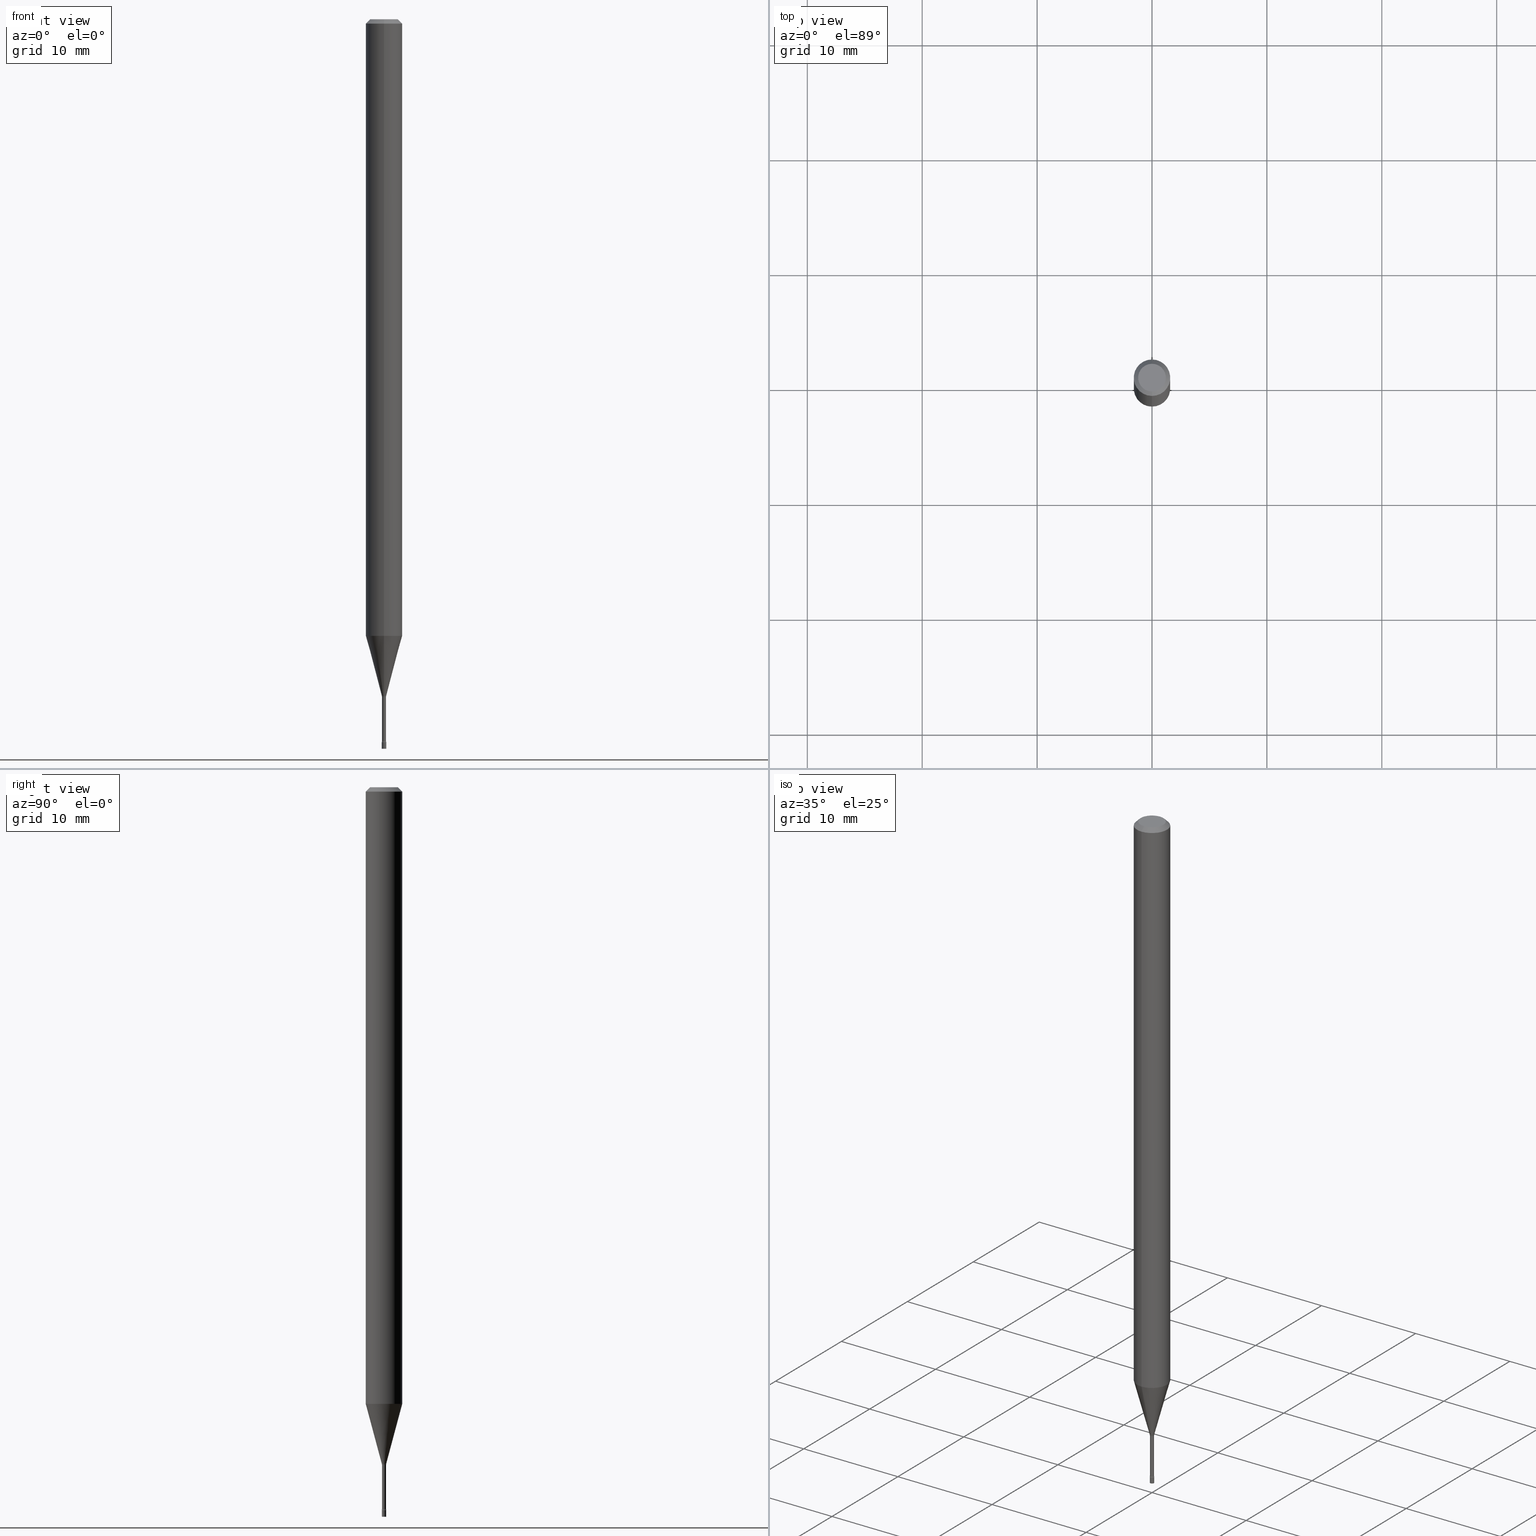
[diagram: canonical four-view strip — front | top / right | iso, engineering-drawing reading convention]
A machine part, canonical four-view strip (front | top / right | iso — engineering-drawing reading convention). The complete STEP part file that produces these views, byte-faithful:
ISO-10303-21;
HEADER;
FILE_DESCRIPTION (( 'STEP AP203' ),
    '1' );
FILE_NAME ('03590.STEP',
    '2024-03-08T21:58:53',
    ( '' ),
    ( '' ),
    'SwSTEP 2.0',
    'SolidWorks 2023',
    '' );
FILE_SCHEMA (( 'CONFIG_CONTROL_DESIGN' ));
ENDSEC;

DATA;
#1 = FACE_OUTER_BOUND ( 'NONE', #109, .T. ) ;
#2 = DIRECTION ( 'NONE',  ( -2.445513339146382515E-29, 3.491417565107982719E-15, 1.000000000000000000 ) ) ;
#3 = CC_DESIGN_PERSON_AND_ORGANIZATION_ASSIGNMENT ( #468, #110, ( #134 ) ) ;
#4 = DATE_TIME_ROLE ( 'classification_date' ) ;
#5 = AXIS2_PLACEMENT_3D ( 'NONE', #488, #125, #243 ) ;
#6 = EDGE_CURVE ( 'NONE', #297, #343, #64, .T. ) ;
#7 = DIRECTION ( 'NONE',  ( -2.445468806185136597E-29, 3.491481338843145583E-15, 1.000000000000000000 ) ) ;
#8 = CIRCLE ( 'NONE', #509, 0.007050000000000001578 ) ;
#9 = ADVANCED_FACE ( 'NONE', ( #293 ), #339, .T. ) ;
#10 = PLANE ( 'NONE',  #501 ) ;
#11 = CARTESIAN_POINT ( 'NONE',  ( 5.678420315904336435E-29, -8.106983558689025189E-15, -2.321974787463811030 ) ) ;
#12 = ADVANCED_FACE ( 'NONE', ( #385 ), #253, .F. ) ;
#13 = DIRECTION ( 'NONE',  ( -6.982962677686265922E-15, -1.000000000000000000, 3.491417565107982719E-15 ) ) ;
#14 = LINE ( 'NONE', #215, #48 ) ;
#15 = CIRCLE ( 'NONE', #467, 0.007049999999999998976 ) ;
#16 = EDGE_LOOP ( 'NONE', ( #315, #212, #431, #70 ) ) ;
#17 = CARTESIAN_POINT ( 'NONE',  ( -5.279896712707803457E-17, -0.007561112605672072433, -2.318092501787273108 ) ) ;
#18 = CARTESIAN_POINT ( 'NONE',  ( 5.009326287114755776E-17, 0.007049999999991890878, -2.321974787463811030 ) ) ;
#19 = CARTESIAN_POINT ( 'NONE',  ( 0.007499999999999999722, -8.700771496397117730E-15, -2.476999999999999869 ) ) ;
#20 = LINE ( 'NONE', #53, #396 ) ;
#21 = ORIENTED_EDGE ( 'NONE', *, *, #270, .F. ) ;
#22 = EDGE_CURVE ( 'NONE', #474, #68, #14, .T. ) ;
#23 = EDGE_CURVE ( 'NONE', #384, #388, #41, .T. ) ;
#24 = VECTOR ( 'NONE', #174, 39.37007874015748854 ) ;
#25 = ORIENTED_EDGE ( 'NONE', *, *, #316, .T. ) ;
#26 = AXIS2_PLACEMENT_3D ( 'NONE', #11, #213, #169 ) ;
#27 = ORIENTED_EDGE ( 'NONE', *, *, #370, .T. ) ;
#28 = DIRECTION ( 'NONE',  ( -1.807323732225327378E-15, -0.2588190451025177974, 0.9659258262890690894 ) ) ;
#29 = VERTEX_POINT ( 'NONE', #18 ) ;
#30 = DIRECTION ( 'NONE',  ( -6.982962677686265922E-15, -1.000000000000000000, 3.491417565107982719E-15 ) ) ;
#31 = CC_DESIGN_DATE_AND_TIME_ASSIGNMENT ( #356, #4, ( #307 ) ) ;
#32 =( CONVERSION_BASED_UNIT ( 'INCH', #347 ) LENGTH_UNIT ( ) NAMED_UNIT ( #285 ) );
#33 = DIRECTION ( 'NONE',  ( 2.445513339146382515E-29, -3.491417565107982719E-15, -1.000000000000000000 ) ) ;
#34 = EDGE_LOOP ( 'NONE', ( #386, #497 ) ) ;
#35 = CIRCLE ( 'NONE', #95, 0.01500000000000002373 ) ;
#36 = AXIS2_PLACEMENT_3D ( 'NONE', #209, #452, #91 ) ;
#37 = ORIENTED_EDGE ( 'NONE', *, *, #40, .F. ) ;
#38 = APPROVAL_STATUS ( 'not_yet_approved' ) ;
#39 = DIRECTION ( 'NONE',  ( -6.982962677686265133E-15, -1.000000000000000000, 0.000000000000000000 ) ) ;
#40 = EDGE_CURVE ( 'NONE', #398, #126, #122, .T. ) ;
#41 = CIRCLE ( 'NONE', #346, 0.06250000000000000000 ) ;
#42 = LOCAL_TIME ( 16, 58, 53.00000000000000000, #406 ) ;
#43 = FACE_OUTER_BOUND ( 'NONE', #186, .T. ) ;
#44 = ORIENTED_EDGE ( 'NONE', *, *, #298, .F. ) ;
#45 = CARTESIAN_POINT ( 'NONE',  ( -0.007499999999999999722, -8.635260606529160038E-15, -2.476999999999999869 ) ) ;
#46 = DIRECTION ( 'NONE',  ( -2.445513339146382515E-29, 3.491417565107982719E-15, 1.000000000000000000 ) ) ;
#47 = VERTEX_POINT ( 'NONE', #389 ) ;
#48 = VECTOR ( 'NONE', #28, 39.37007874015748143 ) ;
#49 = DIRECTION ( 'NONE',  ( -6.982962677686265922E-15, -1.000000000000000000, 3.491417565107982719E-15 ) ) ;
#50 = EDGE_CURVE ( 'NONE', #429, #274, #401, .T. ) ;
#51 = VECTOR ( 'NONE', #128, 39.37007874015748143 ) ;
#52 = CARTESIAN_POINT ( 'NONE',  ( -0.007499999999999999722, -8.635260606529160038E-15, -2.500000000000000000 ) ) ;
#53 = CARTESIAN_POINT ( 'NONE',  ( -0.007499999999999999722, 5.329070518200751197E-17, -3.689201317691179266E-31 ) ) ;
#54 = ORIENTED_EDGE ( 'NONE', *, *, #22, .F. ) ;
#55 = EDGE_CURVE ( 'NONE', #126, #398, #237, .T. ) ;
#56 = DIRECTION ( 'NONE',  ( 2.445513339146382515E-29, -3.491417565107982719E-15, -1.000000000000000000 ) ) ;
#57 = AXIS2_PLACEMENT_3D ( 'NONE', #418, #62, #462 ) ;
#58 = DIRECTION ( 'NONE',  ( -2.445513339146382515E-29, 3.491417565107982719E-15, 1.000000000000000000 ) ) ;
#59 = AXIS2_PLACEMENT_3D ( 'NONE', #141, #453, #375 ) ;
#60 = FACE_OUTER_BOUND ( 'NONE', #420, .T. ) ;
#61 = CARTESIAN_POINT ( 'NONE',  ( 5.678316911491112973E-29, -8.107131639694176138E-15, -2.321974787463811030 ) ) ;
#62 = DIRECTION ( 'NONE',  ( -2.445513339146381954E-29, 3.491417565107983114E-15, 1.000000000000000000 ) ) ;
#63 = ORIENTED_EDGE ( 'NONE', *, *, #238, .T. ) ;
#64 = LINE ( 'NONE', #301, #24 ) ;
#65 = TOROIDAL_SURFACE ( 'NONE', #276, 0.02205000000000002444, 0.01500000000000002373 ) ;
#66 = PERSON_AND_ORGANIZATION_ROLE ( 'creator' ) ;
#67 = ADVANCED_FACE ( 'NONE', ( #267 ), #111, .T. ) ;
#68 = VERTEX_POINT ( 'NONE', #505 ) ;
#69 = DIRECTION ( 'NONE',  ( 7.105427357601001859E-15, 1.000000000000000000, 0.000000000000000000 ) ) ;
#70 = ORIENTED_EDGE ( 'NONE', *, *, #475, .F. ) ;
#71 = SECURITY_CLASSIFICATION_LEVEL ( 'unclassified' ) ;
#72 = CARTESIAN_POINT ( 'NONE',  ( 6.113672015462842613E-29, -8.728703347107864943E-15, -2.500000000000000000 ) ) ;
#73 = ORIENTED_EDGE ( 'NONE', *, *, #6, .F. ) ;
#74 = APPROVAL_ROLE ( '' ) ;
#75 = VERTEX_POINT ( 'NONE', #234 ) ;
#76 = CIRCLE ( 'NONE', #476, 0.06250000000000000000 ) ;
#77 = LOCAL_TIME ( 16, 58, 53.00000000000000000, #514 ) ;
#78 =( NAMED_UNIT ( * ) SI_UNIT ( $, .STERADIAN. ) SOLID_ANGLE_UNIT ( ) );
#79 = DIRECTION ( 'NONE',  ( -6.982962677686265133E-15, -1.000000000000000000, 0.000000000000000000 ) ) ;
#80 = EDGE_LOOP ( 'NONE', ( #520, #405 ) ) ;
#81 = ORIENTED_EDGE ( 'NONE', *, *, #202, .F. ) ;
#82 = PLANE ( 'NONE',  #5 ) ;
#83 = EDGE_LOOP ( 'NONE', ( #516, #456, #268, #303 ) ) ;
#84 = CARTESIAN_POINT ( 'NONE',  ( 6.057426232920582713E-29, -8.648399276314471045E-15, -2.476999999999999869 ) ) ;
#85 = MANIFOLD_SOLID_BREP ( 'Body-Move/Copy2[2]', #193 ) ;
#86 = VECTOR ( 'NONE', #166, 39.37007874015748143 ) ;
#87 = DIRECTION ( 'NONE',  ( 2.445513339146381954E-29, -3.491417565107983114E-15, -1.000000000000000000 ) ) ;
#88 = CARTESIAN_POINT ( 'NONE',  ( -1.539743270429253881E-16, -0.02205000000000810478, -2.321974787463811030 ) ) ;
#89 = CARTESIAN_POINT ( 'NONE',  ( 2.489070731061789820E-16, 0.007561112605655887463, -2.318092501787273108 ) ) ;
#90 = DIRECTION ( 'NONE',  ( -2.445513339146382515E-29, 3.491417565107982719E-15, 1.000000000000000000 ) ) ;
#91 = DIRECTION ( 'NONE',  ( -6.982962677686265133E-15, -1.000000000000000000, 0.000000000000000000 ) ) ;
#92 = CARTESIAN_POINT ( 'NONE',  ( 5.237222008270812965E-17, 0.007499999999991270594, -2.500000000000000000 ) ) ;
#93 = ORIENTED_EDGE ( 'NONE', *, *, #290, .T. ) ;
#94 = DIRECTION ( 'NONE',  ( -4.851104656540964275E-15, -0.7071067811865500152, -0.7071067811865450192 ) ) ;
#95 = AXIS2_PLACEMENT_3D ( 'NONE', #224, #392, #39 ) ;
#96 = EDGE_CURVE ( 'NONE', #297, #29, #484, .T. ) ;
#97 = DIRECTION ( 'NONE',  ( 1.000000000000000000, -6.982962677686267499E-15, 4.876176775795936353E-29 ) ) ;
#98 = AXIS2_PLACEMENT_3D ( 'NONE', #88, #317, #192 ) ;
#99 = DIRECTION ( 'NONE',  ( -2.445513339146382515E-29, 3.491417565107982719E-15, 1.000000000000000000 ) ) ;
#100 = ORIENTED_EDGE ( 'NONE', *, *, #167, .F. ) ;
#101 = DIRECTION ( 'NONE',  ( -6.982962677686265922E-15, -1.000000000000000000, 0.000000000000000000 ) ) ;
#102 = DATE_AND_TIME ( #217, #77 ) ;
#103 = AXIS2_PLACEMENT_3D ( 'NONE', #133, #331, #101 ) ;
#104 = PERSON_AND_ORGANIZATION ( #233, #348 ) ;
#105 = FACE_OUTER_BOUND ( 'NONE', #222, .T. ) ;
#106 = ORIENTED_EDGE ( 'NONE', *, *, #404, .T. ) ;
#107 = FACE_OUTER_BOUND ( 'NONE', #441, .T. ) ;
#108 = EDGE_CURVE ( 'NONE', #381, #464, #35, .T. ) ;
#109 = EDGE_LOOP ( 'NONE', ( #180, #341, #259, #271 ) ) ;
#110 = PERSON_AND_ORGANIZATION_ROLE ( 'creator' ) ;
#111 = CYLINDRICAL_SURFACE ( 'NONE', #255, 0.06250000000000000000 ) ;
#112 = ORIENTED_EDGE ( 'NONE', *, *, #435, .T. ) ;
#113 = AXIS2_PLACEMENT_3D ( 'NONE', #312, #33, #508 ) ;
#114 = ADVANCED_FACE ( 'NONE', ( #345 ), #324, .F. ) ;
#115 = AXIS2_PLACEMENT_3D ( 'NONE', #197, #90, #326 ) ;
#116 = ORIENTED_EDGE ( 'NONE', *, *, #400, .T. ) ;
#117 = MECHANICAL_CONTEXT ( 'NONE', #241, 'mechanical' ) ;
#118 = CARTESIAN_POINT ( 'NONE',  ( -4.922988687768817558E-17, -0.007050000000000000711, 2.461449383401128192E-17 ) ) ;
#119 = DIRECTION ( 'NONE',  ( -2.445513339146382515E-29, 3.491417565107982719E-15, 1.000000000000000000 ) ) ;
#120 = CC_DESIGN_PERSON_AND_ORGANIZATION_ASSIGNMENT ( #269, #430, ( #307 ) ) ;
#121 = DIRECTION ( 'NONE',  ( 1.000000000000000000, -6.982962677686267499E-15, 4.876176775795936353E-29 ) ) ;
#122 = CIRCLE ( 'NONE', #424, 0.007499999999999999722 ) ;
#123 = AXIS2_PLACEMENT_3D ( 'NONE', #92, #252, #205 ) ;
#124 = CC_DESIGN_APPROVAL ( #499, ( #307 ) ) ;
#125 = DIRECTION ( 'NONE',  ( -2.438088387897960049E-29, 3.491481338843145188E-15, 1.000000000000000000 ) ) ;
#126 = VERTEX_POINT ( 'NONE', #515 ) ;
#127 = DIRECTION ( 'NONE',  ( -6.982962677686265133E-15, -1.000000000000000000, 3.491417565107982719E-15 ) ) ;
#128 = DIRECTION ( 'NONE',  ( 4.937700262164548042E-15, 0.7071067811865451302, -0.7071067811865499042 ) ) ;
#129 = EDGE_CURVE ( 'NONE', #474, #297, #216, .T. ) ;
#130 = CIRCLE ( 'NONE', #200, 0.007499999999999999722 ) ;
#131 = LOCAL_TIME ( 16, 58, 53.00000000000000000, #473 ) ;
#132 = FACE_OUTER_BOUND ( 'NONE', #188, .T. ) ;
#133 = CARTESIAN_POINT ( 'NONE',  ( 6.057536541065588652E-29, -8.648241308772473316E-15, -2.476999999999999869 ) ) ;
#134 = PRODUCT_DEFINITION ( 'UNKNOWN', '', #403, #360 ) ;
#135 = DIRECTION ( 'NONE',  ( -6.982962677686265922E-15, -1.000000000000000000, 0.000000000000000000 ) ) ;
#136 = ADVANCED_FACE ( 'NONE', ( #107 ), #500, .T. ) ;
#137 = DIRECTION ( 'NONE',  ( -6.982962677686265922E-15, -1.000000000000000000, 3.491417565107982719E-15 ) ) ;
#138 = CC_DESIGN_APPROVAL ( #494, ( #403 ) ) ;
#139 = EDGE_CURVE ( 'NONE', #381, #47, #148, .T. ) ;
#140 = PRODUCT_DEFINITION_SHAPE ( 'NONE', 'NONE',  #134 ) ;
#141 = CARTESIAN_POINT ( 'NONE',  ( 0.000000000000000000, 0.000000000000000000, 0.000000000000000000 ) ) ;
#142 = ORIENTED_EDGE ( 'NONE', *, *, #55, .F. ) ;
#143 = COORDINATED_UNIVERSAL_TIME_OFFSET ( 5, 0, .BEHIND. ) ;
#144 = ORIENTED_EDGE ( 'NONE', *, *, #334, .F. ) ;
#145 = DIRECTION ( 'NONE',  ( 1.000000000000000000, -6.982962677686268288E-15, 0.000000000000000000 ) ) ;
#146 = ORIENTED_EDGE ( 'NONE', *, *, #480, .T. ) ;
#147 = APPROVAL_STATUS ( 'not_yet_approved' ) ;
#148 = LINE ( 'NONE', #118, #229 ) ;
#149 = AXIS2_PLACEMENT_3D ( 'NONE', #498, #227, #504 ) ;
#150 = ORIENTED_EDGE ( 'NONE', *, *, #50, .F. ) ;
#151 = DIRECTION ( 'NONE',  ( 0.000000000000000000, 0.000000000000000000, 1.000000000000000000 ) ) ;
#152 = EDGE_LOOP ( 'NONE', ( #461, #466, #182, #81 ) ) ;
#153 = FACE_OUTER_BOUND ( 'NONE', #196, .T. ) ;
#154 = EDGE_LOOP ( 'NONE', ( #220, #445, #305, #21 ) ) ;
#155 =( LENGTH_UNIT ( ) NAMED_UNIT ( * ) SI_UNIT ( $, .METRE. ) );
#156 = DIRECTION ( 'NONE',  ( -2.445513339146382515E-29, 3.491417565107982719E-15, 1.000000000000000000 ) ) ;
#157 = ADVANCED_FACE ( 'NONE', ( #153 ), #177, .F. ) ;
#158 = CARTESIAN_POINT ( 'NONE',  ( -3.773273898774340269E-16, -0.04749999999999999362, 1.369253941623399415E-16 ) ) ;
#159 = ADVANCED_FACE ( 'NONE', ( #434 ), #82, .T. ) ;
#160 = ORIENTED_EDGE ( 'NONE', *, *, #322, .F. ) ;
#161 = CARTESIAN_POINT ( 'NONE',  ( 5.329070518206812484E-17, 0.007499999999991359932, -2.476999999999999869 ) ) ;
#162 = CARTESIAN_POINT ( 'NONE',  ( 0.007499999999999999722, -5.237222008264700526E-17, 3.657132581846952195E-31 ) ) ;
#163 = CIRCLE ( 'NONE', #486, 0.06250000000000000000 ) ;
#164 = APPROVAL_PERSON_ORGANIZATION ( #363, #499, #246 ) ;
#165 = DIRECTION ( 'NONE',  ( -2.445513339146382515E-29, 3.491417565107982719E-15, 1.000000000000000000 ) ) ;
#166 = DIRECTION ( 'NONE',  ( -2.445468806185136877E-29, 3.491481338843145188E-15, 1.000000000000000000 ) ) ;
#167 = EDGE_CURVE ( 'NONE', #343, #68, #76, .T. ) ;
#168 = EDGE_LOOP ( 'NONE', ( #463, #254, #368, #116 ) ) ;
#169 = DIRECTION ( 'NONE',  ( -6.982962677686265922E-15, -1.000000000000000000, 0.000000000000000000 ) ) ;
#170 = AXIS2_PLACEMENT_3D ( 'NONE', #477, #151, #506 ) ;
#171 = CARTESIAN_POINT ( 'NONE',  ( 4.440892098501145824E-16, 0.06249999999999995143, -0.01500000000000024751 ) ) ;
#172 = ADVANCED_FACE ( 'NONE', ( #43 ), #442, .T. ) ;
#173 = LINE ( 'NONE', #333, #295 ) ;
#174 = DIRECTION ( 'NONE',  ( 1.839019923739597160E-15, 0.2588190451025245142, 0.9659258262890670910 ) ) ;
#175 = CYLINDRICAL_SURFACE ( 'NONE', #59, 0.007050000000000000711 ) ;
#176 = LINE ( 'NONE', #491, #314 ) ;
#177 = TOROIDAL_SURFACE ( 'NONE', #457, 0.02205000000000000016, 0.01500000000000002547 ) ;
#178 = AXIS2_PLACEMENT_3D ( 'NONE', #61, #99, #13 ) ;
#179 = CALENDAR_DATE ( 2024, 8, 3 ) ;
#180 = ORIENTED_EDGE ( 'NONE', *, *, #480, .F. ) ;
#181 = PERSON_AND_ORGANIZATION_ROLE ( 'design_supplier' ) ;
#182 = ORIENTED_EDGE ( 'NONE', *, *, #23, .F. ) ;
#183 = DIRECTION ( 'NONE',  ( -2.445513339146382234E-29, 3.491417565107983114E-15, 1.000000000000000000 ) ) ;
#184 = AXIS2_PLACEMENT_3D ( 'NONE', #310, #397, #513 ) ;
#185 = AXIS2_PLACEMENT_3D ( 'NONE', #251, #56, #413 ) ;
#186 = EDGE_LOOP ( 'NONE', ( #416, #393, #150, #144 ) ) ;
#187 = APPROVAL ( #147, 'UNSPECIFIED' ) ;
#188 = EDGE_LOOP ( 'NONE', ( #391, #27, #352, #302 ) ) ;
#189 = DIRECTION ( 'NONE',  ( -2.445513339146382515E-29, 3.491417565107982719E-15, 1.000000000000000000 ) ) ;
#190 = CARTESIAN_POINT ( 'NONE',  ( 1.566746732351588408E-16, 0.02204999999999189206, -2.321974787463811030 ) ) ;
#191 = CALENDAR_DATE ( 2024, 8, 3 ) ;
#192 = DIRECTION ( 'NONE',  ( -6.982962677686266711E-15, -1.000000000000000000, 0.000000000000000000 ) ) ;
#193 = CLOSED_SHELL ( 'NONE', ( #377, #472, #355, #136, #260, #490, #511, #67, #439, #320, #12, #114, #263, #157 ) ) ;
#194 = LOCAL_TIME ( 16, 58, 53.00000000000000000, #143 ) ;
#195 = FACE_OUTER_BOUND ( 'NONE', #152, .T. ) ;
#196 = EDGE_LOOP ( 'NONE', ( #226, #512, #93, #349 ) ) ;
#197 = CARTESIAN_POINT ( 'NONE',  ( 5.668926134495985985E-29, -8.093428878285194336E-15, -2.318092501787273108 ) ) ;
#198 = CARTESIAN_POINT ( 'NONE',  ( 7.071676293819534531E-46, -1.009611128746386763E-31, -2.891694018028924753E-17 ) ) ;
#199 = AXIS2_PLACEMENT_3D ( 'NONE', #221, #399, #30 ) ;
#200 = AXIS2_PLACEMENT_3D ( 'NONE', #84, #7, #358 ) ;
#201 = APPROVAL_DATE_TIME ( #321, #499 ) ;
#202 = EDGE_CURVE ( 'NONE', #68, #384, #362, .T. ) ;
#203 = LINE ( 'NONE', #482, #51 ) ;
#204 = DIRECTION ( 'NONE',  ( -2.445513339146382234E-29, 3.491417565107983114E-15, 1.000000000000000000 ) ) ;
#205 = DIRECTION ( 'NONE',  ( -1.000000000000000000, 6.982962677686265922E-15, -4.876176775795935793E-29 ) ) ;
#206 = CC_DESIGN_PERSON_AND_ORGANIZATION_ASSIGNMENT ( #387, #181, ( #403 ) ) ;
#207 = EDGE_CURVE ( 'NONE', #343, #388, #284, .T. ) ;
#208 = CC_DESIGN_APPROVAL ( #187, ( #134 ) ) ;
#209 = CARTESIAN_POINT ( 'NONE',  ( 6.048618796356072015E-29, -8.635509597183926559E-15, -2.473353426265656907 ) ) ;
#210 = ORIENTED_EDGE ( 'NONE', *, *, #129, .T. ) ;
#211 = FACE_OUTER_BOUND ( 'NONE', #83, .T. ) ;
#212 = ORIENTED_EDGE ( 'NONE', *, *, #167, .T. ) ;
#213 = DIRECTION ( 'NONE',  ( -2.445513339146382515E-29, 3.491417565107982719E-15, 1.000000000000000000 ) ) ;
#214 = EDGE_LOOP ( 'NONE', ( #160, #448, #235, #422 ) ) ;
#215 = CARTESIAN_POINT ( 'NONE',  ( -5.279896712707803457E-17, -0.007561112605672072433, -2.318092501787273108 ) ) ;
#216 = CIRCLE ( 'NONE', #394, 0.007561112605663979948 ) ;
#217 = CALENDAR_DATE ( 2024, 8, 3 ) ;
#218 = ORIENTED_EDGE ( 'NONE', *, *, #322, .T. ) ;
#219 = PERSON_AND_ORGANIZATION ( #233, #348 ) ;
#220 = ORIENTED_EDGE ( 'NONE', *, *, #428, .F. ) ;
#221 = CARTESIAN_POINT ( 'NONE',  ( 6.048508650603792991E-29, -8.635667332170297409E-15, -2.473353426265656907 ) ) ;
#222 = EDGE_LOOP ( 'NONE', ( #73, #218, #469, #100 ) ) ;
#223 = COORDINATED_UNIVERSAL_TIME_OFFSET ( 5, 0, .BEHIND. ) ;
#224 = CARTESIAN_POINT ( 'NONE',  ( -1.539743270429218629E-16, -0.02205000000000865990, -2.473353426265656907 ) ) ;
#225 = CC_DESIGN_PERSON_AND_ORGANIZATION_ASSIGNMENT ( #219, #390, ( #244 ) ) ;
#226 = ORIENTED_EDGE ( 'NONE', *, *, #96, .F. ) ;
#227 = DIRECTION ( 'NONE',  ( -2.445513339146382515E-29, 3.491417565107982719E-15, 1.000000000000000000 ) ) ;
#228 = CARTESIAN_POINT ( 'NONE',  ( 5.678316911491112973E-29, -8.107131639694176138E-15, -2.321974787463811030 ) ) ;
#229 = VECTOR ( 'NONE', #183, 39.37007874015748143 ) ;
#230 = CIRCLE ( 'NONE', #283, 0.01500000000000002373 ) ;
#231 = DATE_AND_TIME ( #353, #194 ) ;
#232 = DIRECTION ( 'NONE',  ( -2.445468806185136597E-29, 3.491481338843145583E-15, 1.000000000000000000 ) ) ;
#233 = PERSON ( 'UNSPECIFIED', 'UNSPECIFIED', 'UNSPECIFIED', ('UNSPECIFIED'), ('UNSPECIFIED'), ('UNSPECIFIED') ) ;
#234 = CARTESIAN_POINT ( 'NONE',  ( 3.840629472727447874E-16, 0.04749999999999999362, -1.947592745229183872E-16 ) ) ;
#235 = ORIENTED_EDGE ( 'NONE', *, *, #378, .T. ) ;
#236 = DIRECTION ( 'NONE',  ( -2.445513339146382234E-29, 3.491417565107983114E-15, 1.000000000000000000 ) ) ;
#237 = CIRCLE ( 'NONE', #264, 0.007499999999999999722 ) ;
#238 = EDGE_CURVE ( 'NONE', #75, #280, #313, .T. ) ;
#239 = AXIS2_PLACEMENT_3D ( 'NONE', #417, #496, #135 ) ;
#240 = VERTEX_POINT ( 'NONE', #161 ) ;
#241 = APPLICATION_CONTEXT ( 'configuration controlled 3d designs of mechanical parts and assemblies' ) ;
#242 = DIRECTION ( 'NONE',  ( 6.982962677686265922E-15, 1.000000000000000000, -3.491417565107983114E-15 ) ) ;
#243 = DIRECTION ( 'NONE',  ( 1.000000000000000000, -6.982962677686265922E-15, 4.876176775795935793E-29 ) ) ;
#244 = PRODUCT ( '03590', '03590', '', ( #117 ) ) ;
#245 = CC_DESIGN_DATE_AND_TIME_ASSIGNMENT ( #231, #510, ( #134 ) ) ;
#246 = APPROVAL_ROLE ( '' ) ;
#247 = DIRECTION ( 'NONE',  ( -6.982962677686266711E-15, -1.000000000000000000, 3.491417565107982719E-15 ) ) ;
#248 = VECTOR ( 'NONE', #236, 39.37007874015748143 ) ;
#249 = CIRCLE ( 'NONE', #98, 0.01500000000000002373 ) ;
#250 = DIRECTION ( 'NONE',  ( -2.445513339146382515E-29, 3.491417565107982719E-15, 1.000000000000000000 ) ) ;
#251 = CARTESIAN_POINT ( 'NONE',  ( 3.668270008719580866E-31, -5.237126347661984802E-17, -0.01500000000000003067 ) ) ;
#252 = DIRECTION ( 'NONE',  ( 2.438088387897960049E-29, -3.491481338843145188E-15, -1.000000000000000000 ) ) ;
#253 = PLANE ( 'NONE',  #57 ) ;
#254 = ORIENTED_EDGE ( 'NONE', *, *, #404, .F. ) ;
#255 = AXIS2_PLACEMENT_3D ( 'NONE', #273, #189, #351 ) ;
#256 = CIRCLE ( 'NONE', #115, 0.007561112605663979948 ) ;
#257 = CARTESIAN_POINT ( 'NONE',  ( -4.364351673553912750E-16, -0.06250000000000005551, -0.01499999999999981209 ) ) ;
#258 = DIRECTION ( 'NONE',  ( 1.000000000000000000, -7.105427357601001070E-15, 4.926314727539076266E-29 ) ) ;
#259 = ORIENTED_EDGE ( 'NONE', *, *, #139, .T. ) ;
#260 = ADVANCED_FACE ( 'NONE', ( #195 ), #409, .T. ) ;
#261 = DIRECTION ( 'NONE',  ( -6.982962677686265922E-15, -1.000000000000000000, 3.483106191921935554E-15 ) ) ;
#262 = ORIENTED_EDGE ( 'NONE', *, *, #415, .F. ) ;
#263 = ADVANCED_FACE ( 'NONE', ( #1 ), #519, .T. ) ;
#264 = AXIS2_PLACEMENT_3D ( 'NONE', #342, #479, #145 ) ;
#265 = APPROVAL_DATE_TIME ( #102, #494 ) ;
#266 = CIRCLE ( 'NONE', #36, 0.007050000000000001578 ) ;
#267 = FACE_OUTER_BOUND ( 'NONE', #16, .T. ) ;
#268 = ORIENTED_EDGE ( 'NONE', *, *, #298, .T. ) ;
#269 = PERSON_AND_ORGANIZATION ( #233, #348 ) ;
#270 = EDGE_CURVE ( 'NONE', #274, #429, #130, .T. ) ;
#271 = ORIENTED_EDGE ( 'NONE', *, *, #378, .F. ) ;
#272 = APPLICATION_PROTOCOL_DEFINITION ( 'international standard', 'config_control_design', 1994, #455 ) ;
#273 = CARTESIAN_POINT ( 'NONE',  ( 0.000000000000000000, 0.000000000000000000, 0.000000000000000000 ) ) ;
#274 = VERTEX_POINT ( 'NONE', #45 ) ;
#275 = DIRECTION ( 'NONE',  ( 1.000000000000000000, -7.105427357601001070E-15, 4.926314727539076266E-29 ) ) ;
#276 = AXIS2_PLACEMENT_3D ( 'NONE', #294, #296, #137 ) ;
#277 = VERTEX_POINT ( 'NONE', #408 ) ;
#278 = DIRECTION ( 'NONE',  ( -2.445513339146382515E-29, 3.491417565107982719E-15, 1.000000000000000000 ) ) ;
#279 = CARTESIAN_POINT ( 'NONE',  ( 3.316907271900976096E-16, 0.04749999999999999362, -1.803008044327738005E-16 ) ) ;
#280 = VERTEX_POINT ( 'NONE', #158 ) ;
#281 = CARTESIAN_POINT ( 'NONE',  ( 0.000000000000000000, 0.000000000000000000, 0.000000000000000000 ) ) ;
#282 = CLOSED_SHELL ( 'NONE', ( #172, #159, #9, #449 ) ) ;
#283 = AXIS2_PLACEMENT_3D ( 'NONE', #460, #258, #379 ) ;
#284 = LINE ( 'NONE', #407, #492 ) ;
#285 = DIMENSIONAL_EXPONENTS ( 1.000000000000000000, 0.000000000000000000, 0.000000000000000000, 0.000000000000000000, 0.000000000000000000, 0.000000000000000000, 0.000000000000000000 ) ;
#286 = LINE ( 'NONE', #162, #86 ) ;
#287 = CARTESIAN_POINT ( 'NONE',  ( 5.167510994029587230E-29, -7.377567058677804661E-15, -2.113057782720306310 ) ) ;
#288 = AXIS2_PLACEMENT_3D ( 'NONE', #361, #165, #247 ) ;
#289 = APPROVAL_PERSON_ORGANIZATION ( #350, #187, #421 ) ;
#290 = EDGE_CURVE ( 'NONE', #474, #47, #249, .T. ) ;
#291 = DIRECTION ( 'NONE',  ( -2.445513339146382515E-29, 3.491417565107982719E-15, 1.000000000000000000 ) ) ;
#292 = CARTESIAN_POINT ( 'NONE',  ( -5.237222008258649716E-17, -0.007500000000008657727, -2.476999999999999869 ) ) ;
#293 = FACE_OUTER_BOUND ( 'NONE', #154, .T. ) ;
#294 = CARTESIAN_POINT ( 'NONE',  ( 6.048508650603792991E-29, -8.635667332170297409E-15, -2.473353426265656907 ) ) ;
#295 = VECTOR ( 'NONE', #204, 39.37007874015748143 ) ;
#296 = DIRECTION ( 'NONE',  ( -2.445513339146382515E-29, 3.491417565107982719E-15, 1.000000000000000000 ) ) ;
#297 = VERTEX_POINT ( 'NONE', #89 ) ;
#298 = EDGE_CURVE ( 'NONE', #75, #388, #203, .T. ) ;
#299 = DIRECTION ( 'NONE',  ( -2.445513339146382515E-29, 3.491417565107982719E-15, 1.000000000000000000 ) ) ;
#300 = ORIENTED_EDGE ( 'NONE', *, *, #330, .F. ) ;
#301 = CARTESIAN_POINT ( 'NONE',  ( 5.372493636224331373E-17, 0.007561112605655886595, -2.318092501787273108 ) ) ;
#302 = ORIENTED_EDGE ( 'NONE', *, *, #108, .F. ) ;
#303 = ORIENTED_EDGE ( 'NONE', *, *, #475, .T. ) ;
#304 = CC_DESIGN_PERSON_AND_ORGANIZATION_ASSIGNMENT ( #426, #66, ( #403 ) ) ;
#305 = ORIENTED_EDGE ( 'NONE', *, *, #334, .T. ) ;
#306 = CIRCLE ( 'NONE', #103, 0.007499999999999999722 ) ;
#307 = SECURITY_CLASSIFICATION ( '', '', #71 ) ;
#308 = UNCERTAINTY_MEASURE_WITH_UNIT (LENGTH_MEASURE( 1.000000000000000082E-05 ), #32, 'distance_accuracy_value', 'NONE');
#309 = DIRECTION ( 'NONE',  ( -6.982962677686265133E-15, -1.000000000000000000, 0.000000000000000000 ) ) ;
#310 = CARTESIAN_POINT ( 'NONE',  ( 6.057426232920582713E-29, -8.648399276314471045E-15, -2.476999999999999869 ) ) ;
#311 = ORIENTED_EDGE ( 'NONE', *, *, #316, .F. ) ;
#312 = CARTESIAN_POINT ( 'NONE',  ( 3.668270008719580866E-31, -5.237126347661984802E-17, -0.01500000000000003067 ) ) ;
#313 = CIRCLE ( 'NONE', #288, 0.04749999999999999362 ) ;
#314 = VECTOR ( 'NONE', #94, 39.37007874015748143 ) ;
#315 = ORIENTED_EDGE ( 'NONE', *, *, #207, .F. ) ;
#316 = EDGE_CURVE ( 'NONE', #280, #75, #337, .T. ) ;
#317 = DIRECTION ( 'NONE',  ( -1.000000000000000000, 6.982962677686265922E-15, -4.883557194083112340E-29 ) ) ;
#318 = ORIENTED_EDGE ( 'NONE', *, *, #23, .T. ) ;
#319 = DIRECTION ( 'NONE',  ( -2.445513339146382515E-29, 3.491417565107982719E-15, 1.000000000000000000 ) ) ;
#320 = ADVANCED_FACE ( 'NONE', ( #369 ), #10, .F. ) ;
#321 = DATE_AND_TIME ( #446, #42 ) ;
#322 = EDGE_CURVE ( 'NONE', #297, #474, #256, .T. ) ;
#323 = DIRECTION ( 'NONE',  ( -2.445513339146382234E-29, 3.491417565107983114E-15, 1.000000000000000000 ) ) ;
#324 = TOROIDAL_SURFACE ( 'NONE', #199, 0.02205000000000002444, 0.01500000000000002373 ) ;
#325 = APPROVAL_STATUS ( 'not_yet_approved' ) ;
#326 = DIRECTION ( 'NONE',  ( -6.982962677686265133E-15, -1.000000000000000000, 0.000000000000000000 ) ) ;
#327 = DIRECTION ( 'NONE',  ( -2.445513339146382515E-29, 3.491417565107982719E-15, 1.000000000000000000 ) ) ;
#328 = FACE_OUTER_BOUND ( 'NONE', #354, .T. ) ;
#329 = CONICAL_SURFACE ( 'NONE', #149, 0.007561112605663979948, 0.2617993877991498519 ) ;
#330 = EDGE_CURVE ( 'NONE', #68, #343, #425, .T. ) ;
#331 = DIRECTION ( 'NONE',  ( -2.445513339146382515E-29, 3.491417565107982719E-15, 1.000000000000000000 ) ) ;
#332 = CARTESIAN_POINT ( 'NONE',  ( 3.668270008719580866E-31, -5.237126347661984802E-17, -0.01500000000000003067 ) ) ;
#333 = CARTESIAN_POINT ( 'NONE',  ( 5.009326287108705583E-17, 0.007050000000000000711, -2.461449383401128192E-17 ) ) ;
#334 = EDGE_CURVE ( 'NONE', #126, #429, #286, .T. ) ;
#335 = CARTESIAN_POINT ( 'NONE',  ( 3.668270008719580866E-31, -5.237126347661984802E-17, -0.01500000000000003067 ) ) ;
#336 = EDGE_CURVE ( 'NONE', #277, #381, #8, .T. ) ;
#337 = CIRCLE ( 'NONE', #517, 0.04749999999999999362 ) ;
#338 = FACE_OUTER_BOUND ( 'NONE', #372, .T. ) ;
#339 = CYLINDRICAL_SURFACE ( 'NONE', #382, 0.007499999999999999722 ) ;
#340 =( NAMED_UNIT ( * ) PLANE_ANGLE_UNIT ( ) SI_UNIT ( $, .RADIAN. ) );
#341 = ORIENTED_EDGE ( 'NONE', *, *, #336, .T. ) ;
#342 = CARTESIAN_POINT ( 'NONE',  ( 6.113672015462842613E-29, -8.728703347107864943E-15, -2.500000000000000000 ) ) ;
#343 = VERTEX_POINT ( 'NONE', #371 ) ;
#344 = APPLICATION_PROTOCOL_DEFINITION ( 'international standard', 'config_control_design', 1994, #241 ) ;
#345 = FACE_OUTER_BOUND ( 'NONE', #168, .T. ) ;
#346 = AXIS2_PLACEMENT_3D ( 'NONE', #332, #58, #376 ) ;
#347 = LENGTH_MEASURE_WITH_UNIT ( LENGTH_MEASURE( 0.02539999999999999897 ), #155 );
#348 = ORGANIZATION ( 'UNSPECIFIED', 'UNSPECIFIED', '' ) ;
#349 = ORIENTED_EDGE ( 'NONE', *, *, #415, .T. ) ;
#350 = PERSON_AND_ORGANIZATION ( #233, #348 ) ;
#351 = DIRECTION ( 'NONE',  ( -6.982962677686265922E-15, -1.000000000000000000, 3.491417565107982719E-15 ) ) ;
#352 = ORIENTED_EDGE ( 'NONE', *, *, #483, .T. ) ;
#353 = CALENDAR_DATE ( 2024, 8, 3 ) ;
#354 = EDGE_LOOP ( 'NONE', ( #106, #146, #262, #487 ) ) ;
#355 = ADVANCED_FACE ( 'NONE', ( #132 ), #65, .F. ) ;
#356 = DATE_AND_TIME ( #191, #502 ) ;
#357 = AXIS2_PLACEMENT_3D ( 'NONE', #364, #2, #49 ) ;
#358 = DIRECTION ( 'NONE',  ( 1.000000000000000000, -6.982962677686268288E-15, 0.000000000000000000 ) ) ;
#359 = TOROIDAL_SURFACE ( 'NONE', #178, 0.02205000000000000016, 0.01500000000000002547 ) ;
#360 = DESIGN_CONTEXT ( 'detailed design', #455, 'design' ) ;
#361 = CARTESIAN_POINT ( 'NONE',  ( 7.071676293819534531E-46, -1.009611128746386763E-31, -2.891694018028924753E-17 ) ) ;
#362 = LINE ( 'NONE', #402, #248 ) ;
#363 = PERSON_AND_ORGANIZATION ( #233, #348 ) ;
#364 = CARTESIAN_POINT ( 'NONE',  ( 0.000000000000000000, 0.000000000000000000, 0.000000000000000000 ) ) ;
#365 = AXIS2_PLACEMENT_3D ( 'NONE', #281, #489, #121 ) ;
#366 = CONICAL_SURFACE ( 'NONE', #185, 0.06250000000000000000, 0.7853981633974483900 ) ;
#367 = PRODUCT_RELATED_PRODUCT_CATEGORY ( 'detail', '', ( #244 ) ) ;
#368 = ORIENTED_EDGE ( 'NONE', *, *, #108, .T. ) ;
#369 = FACE_OUTER_BOUND ( 'NONE', #507, .T. ) ;
#370 = EDGE_CURVE ( 'NONE', #277, #240, #230, .T. ) ;
#371 = CARTESIAN_POINT ( 'NONE',  ( 4.440892098501140893E-16, 0.06249999999999262396, -2.113057782720306310 ) ) ;
#372 = EDGE_LOOP ( 'NONE', ( #142, #37 ) ) ;
#373 = PLANE ( 'NONE',  #123 ) ;
#374 = DIRECTION ( 'NONE',  ( -2.445468806185136597E-29, 3.491481338843145583E-15, 1.000000000000000000 ) ) ;
#375 = DIRECTION ( 'NONE',  ( -6.982962677686265133E-15, -1.000000000000000000, 3.491417565107982719E-15 ) ) ;
#376 = DIRECTION ( 'NONE',  ( -6.982962677686265922E-15, -1.000000000000000000, 3.483106191921935554E-15 ) ) ;
#377 = ADVANCED_FACE ( 'NONE', ( #419 ), #359, .F. ) ;
#378 = EDGE_CURVE ( 'NONE', #29, #47, #478, .T. ) ;
#379 = DIRECTION ( 'NONE',  ( 7.105427357601001859E-15, 1.000000000000000000, 0.000000000000000000 ) ) ;
#380 = CARTESIAN_POINT ( 'NONE',  ( 5.678420315904336435E-29, -8.106983558689025189E-15, -2.321974787463811030 ) ) ;
#381 = VERTEX_POINT ( 'NONE', #414 ) ;
#382 = AXIS2_PLACEMENT_3D ( 'NONE', #454, #374, #97 ) ;
#383 = CIRCLE ( 'NONE', #239, 0.007499999999999999722 ) ;
#384 = VERTEX_POINT ( 'NONE', #257 ) ;
#385 = FACE_OUTER_BOUND ( 'NONE', #34, .T. ) ;
#386 = ORIENTED_EDGE ( 'NONE', *, *, #400, .F. ) ;
#387 = PERSON_AND_ORGANIZATION ( #233, #348 ) ;
#388 = VERTEX_POINT ( 'NONE', #171 ) ;
#389 = CARTESIAN_POINT ( 'NONE',  ( -4.922988687763138375E-17, -0.007050000000008106206, -2.321974787463811030 ) ) ;
#390 = PERSON_AND_ORGANIZATION_ROLE ( 'design_owner' ) ;
#391 = ORIENTED_EDGE ( 'NONE', *, *, #336, .F. ) ;
#392 = DIRECTION ( 'NONE',  ( -1.000000000000000000, 6.982962677686265922E-15, -4.883557194083112340E-29 ) ) ;
#393 = ORIENTED_EDGE ( 'NONE', *, *, #428, .T. ) ;
#394 = AXIS2_PLACEMENT_3D ( 'NONE', #471, #156, #79 ) ;
#395 = DIRECTION ( 'NONE',  ( -2.445513339146382515E-29, 3.491417565107982719E-15, 1.000000000000000000 ) ) ;
#396 = VECTOR ( 'NONE', #495, 39.37007874015748143 ) ;
#397 = DIRECTION ( 'NONE',  ( -2.445468806185136597E-29, 3.491481338843145583E-15, 1.000000000000000000 ) ) ;
#398 = VERTEX_POINT ( 'NONE', #52 ) ;
#399 = DIRECTION ( 'NONE',  ( -2.445513339146382515E-29, 3.491417565107982719E-15, 1.000000000000000000 ) ) ;
#400 = EDGE_CURVE ( 'NONE', #464, #240, #306, .T. ) ;
#401 = CIRCLE ( 'NONE', #184, 0.007499999999999999722 ) ;
#402 = CARTESIAN_POINT ( 'NONE',  ( -4.364351673553916201E-16, -0.06250000000000000000, 2.182135978192489199E-16 ) ) ;
#403 = PRODUCT_DEFINITION_FORMATION_WITH_SPECIFIED_SOURCE ( 'ANY', '', #244, .NOT_KNOWN. ) ;
#404 = EDGE_CURVE ( 'NONE', #381, #277, #266, .T. ) ;
#405 = ORIENTED_EDGE ( 'NONE', *, *, #270, .T. ) ;
#406 = COORDINATED_UNIVERSAL_TIME_OFFSET ( 5, 0, .BEHIND. ) ;
#407 = CARTESIAN_POINT ( 'NONE',  ( 4.440892098500625669E-16, 0.06250000000000000000, -2.182135978192489199E-16 ) ) ;
#408 = CARTESIAN_POINT ( 'NONE',  ( 5.169198402660787828E-17, 0.007049999999991366124, -2.473353426265656907 ) ) ;
#409 = CYLINDRICAL_SURFACE ( 'NONE', #357, 0.06250000000000000000 ) ;
#410 = AXIS2_PLACEMENT_3D ( 'NONE', #190, #275, #69 ) ;
#411 = AXIS2_PLACEMENT_3D ( 'NONE', #287, #46, #440 ) ;
#412 = DIRECTION ( 'NONE',  ( -6.982962677686265133E-15, -1.000000000000000000, 0.000000000000000000 ) ) ;
#413 = DIRECTION ( 'NONE',  ( 6.982962677686265922E-15, 1.000000000000000000, -3.483106191921935554E-15 ) ) ;
#414 = CARTESIAN_POINT ( 'NONE',  ( -4.922988687762769829E-17, -0.007050000000008637031, -2.473353426265656907 ) ) ;
#415 = EDGE_CURVE ( 'NONE', #47, #29, #15, .T. ) ;
#416 = ORIENTED_EDGE ( 'NONE', *, *, #55, .T. ) ;
#417 = CARTESIAN_POINT ( 'NONE',  ( 6.057536541065588652E-29, -8.648241308772473316E-15, -2.476999999999999869 ) ) ;
#418 = CARTESIAN_POINT ( 'NONE',  ( 5.237222008270756882E-17, 0.007499999999991352126, -2.476999999999999869 ) ) ;
#419 = FACE_OUTER_BOUND ( 'NONE', #214, .T. ) ;
#420 = EDGE_LOOP ( 'NONE', ( #210, #438, #300, #54 ) ) ;
#421 = APPROVAL_ROLE ( '' ) ;
#422 = ORIENTED_EDGE ( 'NONE', *, *, #290, .F. ) ;
#423 = ADVANCED_BREP_SHAPE_REPRESENTATION ( '03590', ( #432, #85, #170 ), #436 ) ;
#424 = AXIS2_PLACEMENT_3D ( 'NONE', #72, #232, #427 ) ;
#425 = CIRCLE ( 'NONE', #411, 0.06250000000000000000 ) ;
#426 = PERSON_AND_ORGANIZATION ( #233, #348 ) ;
#427 = DIRECTION ( 'NONE',  ( 1.000000000000000000, -6.982962677686268288E-15, 0.000000000000000000 ) ) ;
#428 = EDGE_CURVE ( 'NONE', #398, #274, #20, .T. ) ;
#429 = VERTEX_POINT ( 'NONE', #19 ) ;
#430 = PERSON_AND_ORGANIZATION_ROLE ( 'classification_officer' ) ;
#431 = ORIENTED_EDGE ( 'NONE', *, *, #202, .T. ) ;
#432 = MANIFOLD_SOLID_BREP ( 'Body-Move/Copy2[1]', #282 ) ;
#433 = APPROVAL_DATE_TIME ( #465, #187 ) ;
#434 = FACE_OUTER_BOUND ( 'NONE', #80, .T. ) ;
#435 = EDGE_CURVE ( 'NONE', #280, #384, #176, .T. ) ;
#436 =( GEOMETRIC_REPRESENTATION_CONTEXT ( 3 ) GLOBAL_UNCERTAINTY_ASSIGNED_CONTEXT ( ( #308 ) ) GLOBAL_UNIT_ASSIGNED_CONTEXT ( ( #32, #340, #78 ) ) REPRESENTATION_CONTEXT ( 'NONE', 'WORKASPACE' ) );
#437 = DIRECTION ( 'NONE',  ( -6.982962677686265922E-15, -1.000000000000000000, 3.491417565107982719E-15 ) ) ;
#438 = ORIENTED_EDGE ( 'NONE', *, *, #6, .T. ) ;
#439 = ADVANCED_FACE ( 'NONE', ( #211 ), #366, .T. ) ;
#440 = DIRECTION ( 'NONE',  ( -6.982962677686265922E-15, -1.000000000000000000, 4.370956789862821150E-15 ) ) ;
#441 = EDGE_LOOP ( 'NONE', ( #311, #112, #318, #44 ) ) ;
#442 = CYLINDRICAL_SURFACE ( 'NONE', #365, 0.007499999999999999722 ) ;
#443 = APPROVAL_PERSON_ORGANIZATION ( #104, #494, #74 ) ;
#444 = CARTESIAN_POINT ( 'NONE',  ( 0.000000000000000000, 0.000000000000000000, 0.000000000000000000 ) ) ;
#445 = ORIENTED_EDGE ( 'NONE', *, *, #40, .T. ) ;
#446 = CALENDAR_DATE ( 2024, 8, 3 ) ;
#447 = DIRECTION ( 'NONE',  ( -6.982962677686266711E-15, -1.000000000000000000, 3.491417565107982719E-15 ) ) ;
#448 = ORIENTED_EDGE ( 'NONE', *, *, #96, .T. ) ;
#449 = ADVANCED_FACE ( 'NONE', ( #338 ), #373, .T. ) ;
#450 = CARTESIAN_POINT ( 'NONE',  ( 6.048618796356072015E-29, -8.635509597183926559E-15, -2.473353426265656907 ) ) ;
#451 = AXIS2_PLACEMENT_3D ( 'NONE', #470, #395, #309 ) ;
#452 = DIRECTION ( 'NONE',  ( -2.445513339146382515E-29, 3.491417565107982719E-15, 1.000000000000000000 ) ) ;
#453 = DIRECTION ( 'NONE',  ( -2.445513339146382515E-29, 3.491417565107982719E-15, 1.000000000000000000 ) ) ;
#454 = CARTESIAN_POINT ( 'NONE',  ( 0.000000000000000000, 0.000000000000000000, 0.000000000000000000 ) ) ;
#455 = APPLICATION_CONTEXT ( 'configuration controlled 3d designs of mechanical parts and assemblies' ) ;
#456 = ORIENTED_EDGE ( 'NONE', *, *, #238, .F. ) ;
#457 = AXIS2_PLACEMENT_3D ( 'NONE', #228, #278, #437 ) ;
#458 = CONICAL_SURFACE ( 'NONE', #451, 0.007561112605663979948, 0.2617993877991498519 ) ;
#459 = CC_DESIGN_SECURITY_CLASSIFICATION ( #307, ( #403 ) ) ;
#460 = CARTESIAN_POINT ( 'NONE',  ( 1.566746732351627111E-16, 0.02204999999999138899, -2.473353426265656907 ) ) ;
#461 = ORIENTED_EDGE ( 'NONE', *, *, #330, .T. ) ;
#462 = DIRECTION ( 'NONE',  ( -6.982962677686265922E-15, -1.000000000000000000, 3.491417565107983114E-15 ) ) ;
#463 = ORIENTED_EDGE ( 'NONE', *, *, #370, .F. ) ;
#464 = VERTEX_POINT ( 'NONE', #292 ) ;
#465 = DATE_AND_TIME ( #179, #131 ) ;
#466 = ORIENTED_EDGE ( 'NONE', *, *, #207, .T. ) ;
#467 = AXIS2_PLACEMENT_3D ( 'NONE', #380, #291, #503 ) ;
#468 = PERSON_AND_ORGANIZATION ( #233, #348 ) ;
#469 = ORIENTED_EDGE ( 'NONE', *, *, #22, .T. ) ;
#470 = CARTESIAN_POINT ( 'NONE',  ( 5.668926134495985985E-29, -8.093428878285194336E-15, -2.318092501787273108 ) ) ;
#471 = CARTESIAN_POINT ( 'NONE',  ( 5.668926134495985985E-29, -8.093428878285194336E-15, -2.318092501787273108 ) ) ;
#472 = ADVANCED_FACE ( 'NONE', ( #328 ), #175, .T. ) ;
#473 = COORDINATED_UNIVERSAL_TIME_OFFSET ( 5, 0, .BEHIND. ) ;
#474 = VERTEX_POINT ( 'NONE', #17 ) ;
#475 = EDGE_CURVE ( 'NONE', #388, #384, #163, .T. ) ;
#476 = AXIS2_PLACEMENT_3D ( 'NONE', #481, #327, #485 ) ;
#477 = CARTESIAN_POINT ( 'NONE',  ( 0.000000000000000000, 0.000000000000000000, 0.000000000000000000 ) ) ;
#478 = CIRCLE ( 'NONE', #26, 0.007049999999999998976 ) ;
#479 = DIRECTION ( 'NONE',  ( -2.445468806185136597E-29, 3.491481338843145583E-15, 1.000000000000000000 ) ) ;
#480 = EDGE_CURVE ( 'NONE', #277, #29, #173, .T. ) ;
#481 = CARTESIAN_POINT ( 'NONE',  ( 5.167510994029587230E-29, -7.377567058677804661E-15, -2.113057782720306310 ) ) ;
#482 = CARTESIAN_POINT ( 'NONE',  ( 4.364351673553919652E-16, 0.06249999999999995143, -0.01500000000000024751 ) ) ;
#483 = EDGE_CURVE ( 'NONE', #240, #464, #383, .T. ) ;
#484 = CIRCLE ( 'NONE', #410, 0.01500000000000002373 ) ;
#485 = DIRECTION ( 'NONE',  ( -6.982962677686265922E-15, -1.000000000000000000, 4.370956789862821150E-15 ) ) ;
#486 = AXIS2_PLACEMENT_3D ( 'NONE', #335, #299, #261 ) ;
#487 = ORIENTED_EDGE ( 'NONE', *, *, #139, .F. ) ;
#488 = CARTESIAN_POINT ( 'NONE',  ( 6.057426232920582713E-29, -8.648399276314471045E-15, -2.476999999999999869 ) ) ;
#489 = DIRECTION ( 'NONE',  ( -2.445468806185136597E-29, 3.491481338843145583E-15, 1.000000000000000000 ) ) ;
#490 = ADVANCED_FACE ( 'NONE', ( #60 ), #329, .T. ) ;
#491 = CARTESIAN_POINT ( 'NONE',  ( -4.287811248607203282E-16, -0.06250000000000005551, -0.01499999999999981209 ) ) ;
#492 = VECTOR ( 'NONE', #323, 39.37007874015748143 ) ;
#493 = AXIS2_PLACEMENT_3D ( 'NONE', #444, #319, #127 ) ;
#494 = APPROVAL ( #38, 'UNSPECIFIED' ) ;
#495 = DIRECTION ( 'NONE',  ( -2.445468806185136877E-29, 3.491481338843145188E-15, 1.000000000000000000 ) ) ;
#496 = DIRECTION ( 'NONE',  ( -2.445513339146382515E-29, 3.491417565107982719E-15, 1.000000000000000000 ) ) ;
#497 = ORIENTED_EDGE ( 'NONE', *, *, #483, .F. ) ;
#498 = CARTESIAN_POINT ( 'NONE',  ( 5.668926134495985985E-29, -8.093428878285194336E-15, -2.318092501787273108 ) ) ;
#499 = APPROVAL ( #325, 'UNSPECIFIED' ) ;
#500 = CONICAL_SURFACE ( 'NONE', #113, 0.06250000000000000000, 0.7853981633974483900 ) ;
#501 = AXIS2_PLACEMENT_3D ( 'NONE', #279, #87, #242 ) ;
#502 = LOCAL_TIME ( 16, 58, 53.00000000000000000, #223 ) ;
#503 = DIRECTION ( 'NONE',  ( -6.982962677686265922E-15, -1.000000000000000000, 0.000000000000000000 ) ) ;
#504 = DIRECTION ( 'NONE',  ( -6.982962677686265133E-15, -1.000000000000000000, 0.000000000000000000 ) ) ;
#505 = CARTESIAN_POINT ( 'NONE',  ( -4.364351673553399990E-16, -0.06250000000000736911, -2.113057782720305866 ) ) ;
#506 = DIRECTION ( 'NONE',  ( 1.000000000000000000, 0.000000000000000000, 0.000000000000000000 ) ) ;
#507 = EDGE_LOOP ( 'NONE', ( #63, #25 ) ) ;
#508 = DIRECTION ( 'NONE',  ( 6.982962677686265922E-15, 1.000000000000000000, -3.483106191921935554E-15 ) ) ;
#509 = AXIS2_PLACEMENT_3D ( 'NONE', #450, #250, #412 ) ;
#510 = DATE_TIME_ROLE ( 'creation_date' ) ;
#511 = ADVANCED_FACE ( 'NONE', ( #105 ), #458, .T. ) ;
#512 = ORIENTED_EDGE ( 'NONE', *, *, #129, .F. ) ;
#513 = DIRECTION ( 'NONE',  ( 1.000000000000000000, -6.982962677686268288E-15, 0.000000000000000000 ) ) ;
#514 = COORDINATED_UNIVERSAL_TIME_OFFSET ( 5, 0, .BEHIND. ) ;
#515 = CARTESIAN_POINT ( 'NONE',  ( 0.007499999999999999722, -8.781075567190511627E-15, -2.500000000000000000 ) ) ;
#516 = ORIENTED_EDGE ( 'NONE', *, *, #435, .F. ) ;
#517 = AXIS2_PLACEMENT_3D ( 'NONE', #198, #119, #447 ) ;
#518 = SHAPE_DEFINITION_REPRESENTATION ( #140, #423 ) ;
#519 = CYLINDRICAL_SURFACE ( 'NONE', #493, 0.007050000000000000711 ) ;
#520 = ORIENTED_EDGE ( 'NONE', *, *, #50, .T. ) ;
ENDSEC;
END-ISO-10303-21;
